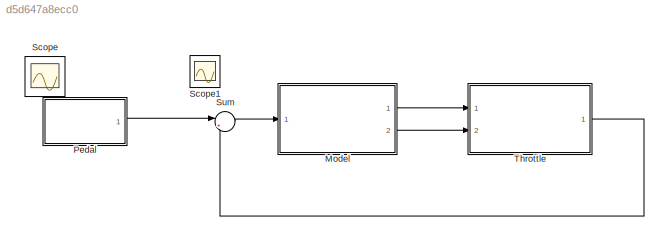
MODEL slx_d5d647a8ecc0
KIND model
CONFIG AbsTol = auto
CONFIG EnableMultiTasking = off
CONFIG FixedStep = auto
CONFIG MaxStep = auto
CONFIG MinStep = auto
CONFIG PreLoadFcn = etc_all_data;
CONFIG RelTol = 1e-3
CONFIG SampleTimeConstraint = Unconstrained
CONFIG Solver = ode45
CONFIG SolverName = ode45
CONFIG StartTime = 0.0
CONFIG StopTime = 20.0
BLOCK [ModelReference] Model
  ModelNameDialog = etc_controller_start
  ModelReferenceVersion = 1.72
  Ports = [1, 2]
  Variant = off
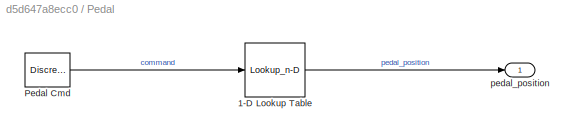
BLOCK [SubSystem] Pedal
  Ports = [0, 1]
  RequestExecContextInheritance = off
  Variant = off
BLOCK [Lookup_n-D] Pedal/1-D Lookup Table
  BreakpointsForDimension1 = [0 1]
  NumberOfTableDimensions = 1
  Ports = [1, 1]
  RndMeth = Simplest
  Table = [0.5 4.5]
BLOCK [DiscretePulseGenerator] Pedal/Pedal Cmd
  Amplitude = 0.9
  Period = 10
  PhaseDelay = 2.5
  Ports = [0, 1]
  PulseType = Time based
  PulseWidth = 50
BLOCK [Outport] Pedal/pedal_position
  IconDisplay = Port number
BLOCK [Scope] Scope
  IOType = viewer
  NumInputPorts = 1
  Ports = []
  ScopeSpecificationString = Simulink.scopes.TimeScopeBlockCfg('CurrentConfiguration', extmgr.ConfigurationSet(extmgr.Configuration('Core','General UI',true),extmgr.Configuration('Core','Source UI',true),extmgr.Configuration('Sources','WiredSimulink',true,'DataLoggingMaxPoints','7500','DataLoggingLimitDataPoints',true,'DataLoggingSaveFormat','Array','DataLoggingDecimation','1','DataLoggingDecimateData',true),extmgr.Configurat...<+3093ch>
BLOCK [Scope] Scope1
  IOType = viewer
  NumInputPorts = 1
  Ports = []
  ScopeSpecificationString = Simulink.scopes.TimeScopeBlockCfg('CurrentConfiguration', extmgr.ConfigurationSet(extmgr.Configuration('Core','General UI',true),extmgr.Configuration('Core','Source UI',true),extmgr.Configuration('Sources','WiredSimulink',true,'DataLoggingVariableName','ScopeData1','DataLoggingSaveFormat','StructureWithTime','DataLoggingLimitDataPoints',true,'DataLoggingDecimation','1','DataLoggingDecimateData',tr...<+1641ch>
BLOCK [Sum] Sum
  IconShape = round
  InputSameDT = off
  Inputs = |+-
  OutDataTypeStr = Inherit: Inherit via internal rule
  Ports = [2, 1]
  SaturateOnIntegerOverflow = off
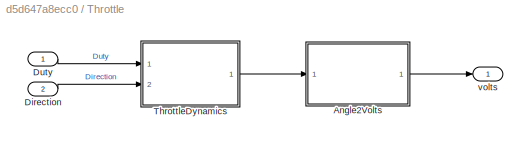
BLOCK [SubSystem] Throttle
  Ports = [2, 1]
  RequestExecContextInheritance = off
  Variant = off
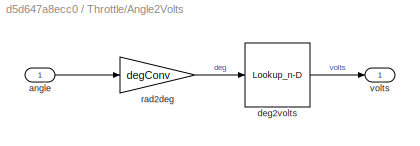
BLOCK [SubSystem] Throttle/Angle2Volts
  Ports = [1, 1]
  RequestExecContextInheritance = off
  Variant = off
BLOCK [Inport] Throttle/Angle2Volts/angle 
  IconDisplay = Port number
BLOCK [Lookup_n-D] Throttle/Angle2Volts/deg2volts
  BreakpointsForDimension1 = [0 90]
  NumberOfTableDimensions = 1
  Ports = [1, 1]
  RndMeth = Simplest
  Table = [0.5 4.5]
BLOCK [Gain] Throttle/Angle2Volts/rad2deg
  Gain = degConv
BLOCK [Outport] Throttle/Angle2Volts/volts
  IconDisplay = Port number
BLOCK [Inport] Throttle/Direction
  IconDisplay = Port number
  Port = 2
BLOCK [Inport] Throttle/Duty
  IconDisplay = Port number
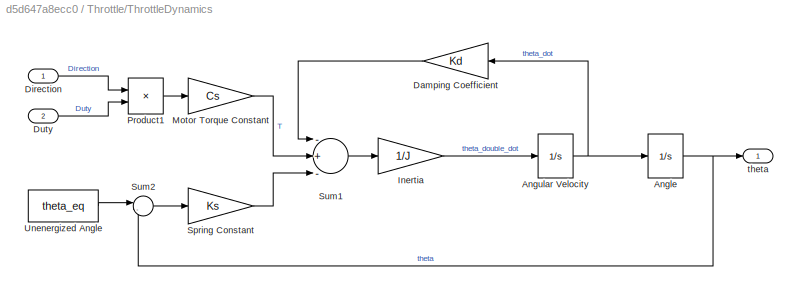
BLOCK [SubSystem] Throttle/ThrottleDynamics
  Ports = [2, 1]
  RequestExecContextInheritance = off
  Variant = off
BLOCK [Integrator] Throttle/ThrottleDynamics/Angle
  AttributesFormatString = Initial condition: %<InitialCondition>\n%<LowerSaturationLimit> <= theta <= %<UpperSaturationLimit>
  InitialCondition = pi/6
  LimitOutput = on
  LowerSaturationLimit = 0
  Ports = [1, 1]
  UpperSaturationLimit = pi/2
BLOCK [Integrator] Throttle/ThrottleDynamics/Angular Velocity
  AttributesFormatString = Initial condition: %<InitialCondition>
  Ports = [1, 1]
BLOCK [Gain] Throttle/ThrottleDynamics/Damping Coefficient
  Gain = Kd
BLOCK [Inport] Throttle/ThrottleDynamics/Direction
  IconDisplay = Port number
BLOCK [Inport] Throttle/ThrottleDynamics/Duty
  IconDisplay = Port number
  Port = 2
BLOCK [Gain] Throttle/ThrottleDynamics/Inertia
  Gain = 1/J
BLOCK [Gain] Throttle/ThrottleDynamics/Motor Torque Constant
  Gain = Cs
BLOCK [Product] Throttle/ThrottleDynamics/Product1
  InputSameDT = off
  Ports = [2, 1]
  RndMeth = Floor
BLOCK [Gain] Throttle/ThrottleDynamics/Spring Constant
  Gain = Ks
BLOCK [Sum] Throttle/ThrottleDynamics/Sum1
  InputSameDT = off
  Inputs = -+-
  OutDataTypeStr = Inherit: Inherit via internal rule
  Ports = [3, 1]
BLOCK [Sum] Throttle/ThrottleDynamics/Sum2
  IconShape = round
  InputSameDT = off
  Inputs = |-+
  OutDataTypeStr = Inherit: Inherit via internal rule
  Ports = [2, 1]
BLOCK [Constant] Throttle/ThrottleDynamics/Unenergized Angle
  Value = theta_eq
BLOCK [Outport] Throttle/ThrottleDynamics/theta
  IconDisplay = Port number
BLOCK [Outport] Throttle/volts
  IconDisplay = Port number
LINE Model:1 -> Throttle:1
LINE Model:2 -> Throttle:2
LINE Pedal/1-D Lookup Table:1 -> Pedal/pedal_position:1
LINE Pedal/Pedal Cmd:1 -> Pedal/1-D Lookup Table:1
LINE Pedal:1 -> Sum:1
LINE Sum:1 -> Model:1
LINE Throttle/Angle2Volts/angle :1 -> Throttle/Angle2Volts/rad2deg:1
LINE Throttle/Angle2Volts/deg2volts:1 -> Throttle/Angle2Volts/volts:1
LINE Throttle/Angle2Volts/rad2deg:1 -> Throttle/Angle2Volts/deg2volts:1
LINE Throttle/Angle2Volts:1 -> Throttle/volts:1
LINE Throttle/Direction:1 -> Throttle/ThrottleDynamics:2
LINE Throttle/Duty:1 -> Throttle/ThrottleDynamics:1
NET Throttle/ThrottleDynamics/Angle:1 -> Throttle/ThrottleDynamics/Sum2:2, Throttle/ThrottleDynamics/theta:1
NET Throttle/ThrottleDynamics/Angular Velocity:1 -> Throttle/ThrottleDynamics/Angle:1, Throttle/ThrottleDynamics/Damping Coefficient:1
LINE Throttle/ThrottleDynamics/Damping Coefficient:1 -> Throttle/ThrottleDynamics/Sum1:1
LINE Throttle/ThrottleDynamics/Direction:1 -> Throttle/ThrottleDynamics/Product1:1
LINE Throttle/ThrottleDynamics/Duty:1 -> Throttle/ThrottleDynamics/Product1:2
LINE Throttle/ThrottleDynamics/Inertia:1 -> Throttle/ThrottleDynamics/Angular Velocity:1
LINE Throttle/ThrottleDynamics/Motor Torque Constant:1 -> Throttle/ThrottleDynamics/Sum1:2
LINE Throttle/ThrottleDynamics/Product1:1 -> Throttle/ThrottleDynamics/Motor Torque Constant:1
LINE Throttle/ThrottleDynamics/Spring Constant:1 -> Throttle/ThrottleDynamics/Sum1:3
LINE Throttle/ThrottleDynamics/Sum1:1 -> Throttle/ThrottleDynamics/Inertia:1
LINE Throttle/ThrottleDynamics/Sum2:1 -> Throttle/ThrottleDynamics/Spring Constant:1
LINE Throttle/ThrottleDynamics/Unenergized Angle:1 -> Throttle/ThrottleDynamics/Sum2:1
LINE Throttle/ThrottleDynamics:1 -> Throttle/Angle2Volts:1
LINE Throttle:1 -> Sum:2
note: NET lines group one-source signal fan-out (src -> all destinations, sorted); 1:1 wires keep LINE
